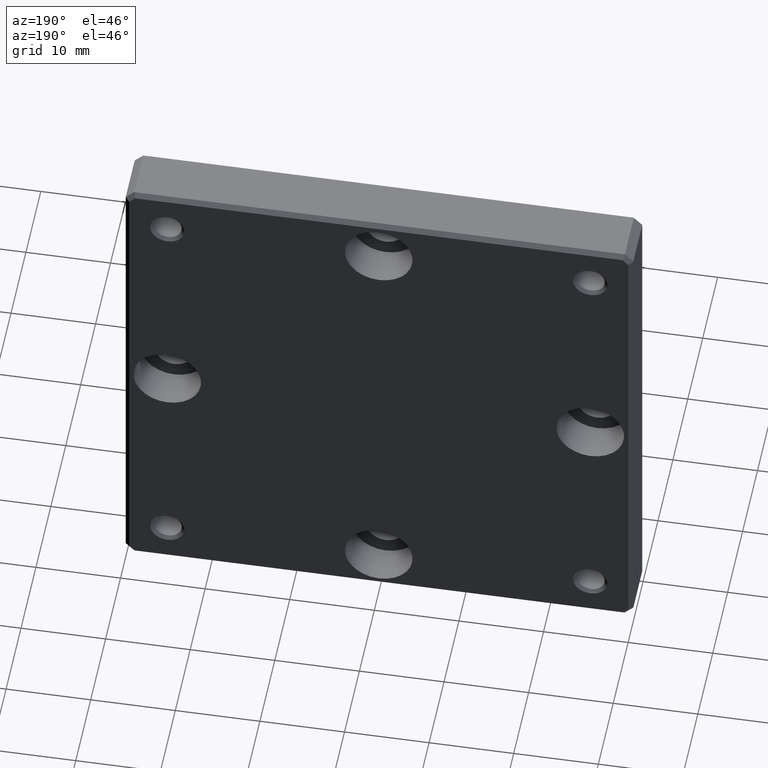
[diagram: clean part render]
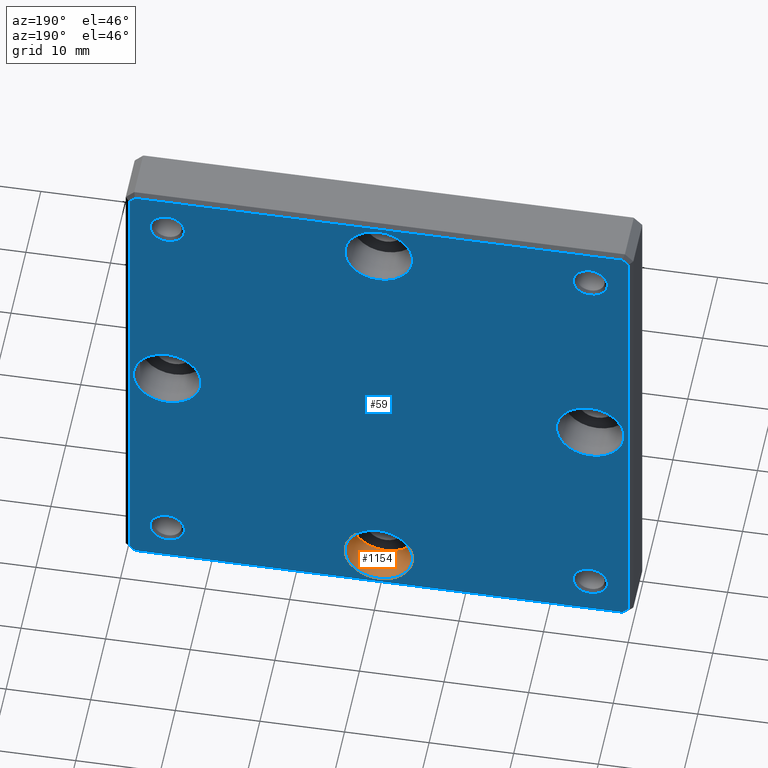
[diagram: same view with the hole feature highlighted: cylindrical wall and planar end face, labeled with their STEP entity ids]
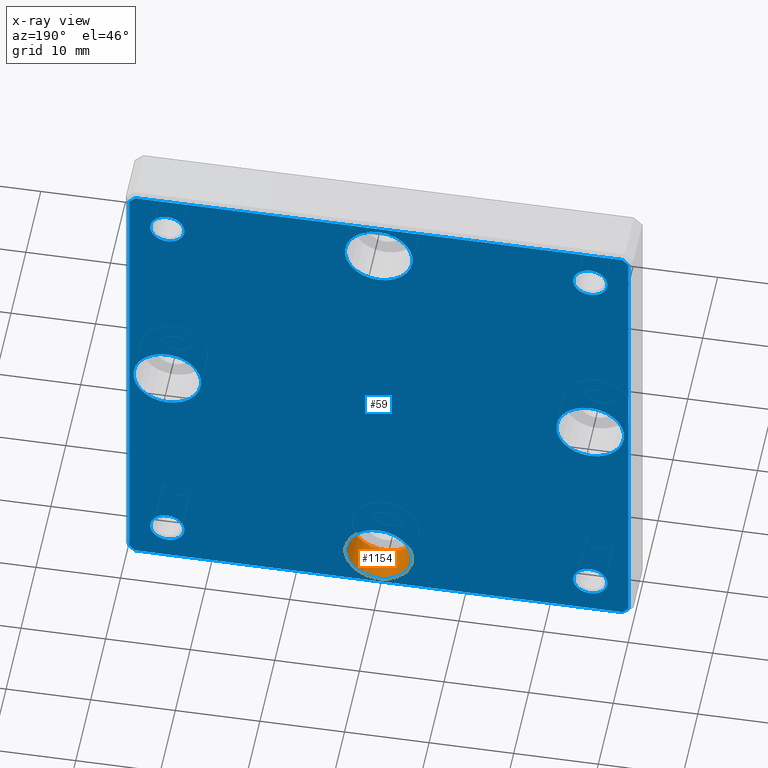
[diagram: x-ray of the same camera — body ghosted, the hole faces saturated]
A machine part, auxiliary view. The highlighted faces form one hole feature of diameter 8 mm: the cylindrical wall (entity #1154, orange) and its adjacent planar end face (entity #59, blue) — they share a circular edge in the B-rep.
The next image is the same camera in x-ray (body ghosted, the hole faces saturated) — the bore reads through the body.
Wall:
#3 = EDGE_LOOP ( 'NONE', ( #225 ) ) ;
#31 = AXIS2_PLACEMENT_3D ( 'NONE', #155, #1020, #43 ) ;
#43 = DIRECTION ( 'NONE',  ( 0.000000000000000000, 0.000000000000000000, 1.000000000000000000 ) ) ;
#110 = EDGE_CURVE ( 'NONE', #818, #818, #1236, .T. ) ;
#155 = CARTESIAN_POINT ( 'NONE',  ( -6.938893903907228378E-15, 2.400000000000000355, -24.99999999999999645 ) ) ;
#188 = CYLINDRICAL_SURFACE ( 'NONE', #197, 4.000000000000000000 ) ;
#197 = AXIS2_PLACEMENT_3D ( 'NONE', #378, #1062, #775 ) ;
#225 = ORIENTED_EDGE ( 'NONE', *, *, #725, .F. ) ;
#279 = FACE_OUTER_BOUND ( 'NONE', #409, .T. ) ;
#359 = DIRECTION ( 'NONE',  ( 0.000000000000000000, 0.000000000000000000, 1.000000000000000000 ) ) ;
#378 = CARTESIAN_POINT ( 'NONE',  ( -6.938893903907228378E-15, 7.000000000000000000, -24.99999999999999645 ) ) ;
#409 = EDGE_LOOP ( 'NONE', ( #1036 ) ) ;
#725 = EDGE_CURVE ( 'NONE', #831, #831, #1017, .T. ) ;
#775 = DIRECTION ( 'NONE',  ( 0.000000000000000000, 0.000000000000000000, 1.000000000000000000 ) ) ;
#818 = VERTEX_POINT ( 'NONE', #1029 ) ;
#831 = VERTEX_POINT ( 'NONE', #1220 ) ;
#851 = DIRECTION ( 'NONE',  ( -0.000000000000000000, 1.000000000000000000, -0.000000000000000000 ) ) ;
#988 = AXIS2_PLACEMENT_3D ( 'NONE', #1158, #851, #359 ) ;
#1017 = CIRCLE ( 'NONE', #31, 4.000000000000000000 ) ;
#1020 = DIRECTION ( 'NONE',  ( -0.000000000000000000, 1.000000000000000000, -0.000000000000000000 ) ) ;
#1029 = CARTESIAN_POINT ( 'NONE',  ( -6.938893903907228378E-15, 7.000000000000000000, -20.99999999999999645 ) ) ;
#1036 = ORIENTED_EDGE ( 'NONE', *, *, #110, .T. ) ;
#1062 = DIRECTION ( 'NONE',  ( -0.000000000000000000, 1.000000000000000000, -0.000000000000000000 ) ) ;
#1068 = FACE_OUTER_BOUND ( 'NONE', #3, .T. ) ;
#1154 = ADVANCED_FACE ( 'NONE', ( #1068, #279 ), #188, .F. ) ;
#1158 = CARTESIAN_POINT ( 'NONE',  ( -6.938893903907228378E-15, 7.000000000000000000, -24.99999999999999645 ) ) ;
#1220 = CARTESIAN_POINT ( 'NONE',  ( -6.938893903907228378E-15, 2.400000000000000355, -20.99999999999999645 ) ) ;
#1236 = CIRCLE ( 'NONE', #988, 4.000000000000000000 ) ;
End face:
#1 = CIRCLE ( 'NONE', #779, 2.024999999999999023 ) ;
#14 = DIRECTION ( 'NONE',  ( -0.000000000000000000, 1.000000000000000000, -0.000000000000000000 ) ) ;
#19 = EDGE_LOOP ( 'NONE', ( #230, #625, #1211, #970, #1086, #951, #888, #118 ) ) ;
#21 = EDGE_CURVE ( 'NONE', #269, #806, #223, .T. ) ;
#23 = AXIS2_PLACEMENT_3D ( 'NONE', #528, #40, #443 ) ;
#28 = LINE ( 'NONE', #705, #221 ) ;
#40 = DIRECTION ( 'NONE',  ( -0.000000000000000000, 1.000000000000000000, -0.000000000000000000 ) ) ;
#41 = EDGE_CURVE ( 'NONE', #61, #61, #151, .T. ) ;
#50 = EDGE_CURVE ( 'NONE', #944, #173, #1000, .T. ) ;
#55 = CARTESIAN_POINT ( 'NONE',  ( 29.50000000000000711, 7.000000000000000000, 28.79289321881344677 ) ) ;
#59 = ADVANCED_FACE ( 'NONE', ( #461, #1143, #858, #445, #1042, #1238, #171, #177, #955 ), #670, .T. ) ;
#61 = VERTEX_POINT ( 'NONE', #532 ) ;
#65 = CARTESIAN_POINT ( 'NONE',  ( 24.99999999999999645, 7.000000000000000000, 3.469446951953614189E-15 ) ) ;
#68 = EDGE_CURVE ( 'NONE', #957, #944, #73, .T. ) ;
#73 = LINE ( 'NONE', #267, #667 ) ;
#76 = VERTEX_POINT ( 'NONE', #952 ) ;
#79 = VECTOR ( 'NONE', #488, 1000.000000000000114 ) ;
#80 = DIRECTION ( 'NONE',  ( 0.000000000000000000, 0.000000000000000000, -1.000000000000000000 ) ) ;
#94 = DIRECTION ( 'NONE',  ( -0.000000000000000000, 1.000000000000000000, -0.000000000000000000 ) ) ;
#95 = EDGE_LOOP ( 'NONE', ( #883 ) ) ;
#99 = LINE ( 'NONE', #887, #79 ) ;
#102 = EDGE_CURVE ( 'NONE', #420, #420, #193, .T. ) ;
#110 = EDGE_CURVE ( 'NONE', #818, #818, #1236, .T. ) ;
#118 = ORIENTED_EDGE ( 'NONE', *, *, #1216, .T. ) ;
#119 = DIRECTION ( 'NONE',  ( 0.000000000000000000, 0.000000000000000000, 1.000000000000000000 ) ) ;
#120 = DIRECTION ( 'NONE',  ( 0.000000000000000000, 0.000000000000000000, 1.000000000000000000 ) ) ;
#129 = ORIENTED_EDGE ( 'NONE', *, *, #1107, .F. ) ;
#133 = DIRECTION ( 'NONE',  ( -0.7071067811865474617, 0.000000000000000000, 0.7071067811865474617 ) ) ;
#151 = CIRCLE ( 'NONE', #805, 4.000000000000000000 ) ;
#156 = EDGE_LOOP ( 'NONE', ( #822 ) ) ;
#171 = FACE_BOUND ( 'NONE', #793, .T. ) ;
#173 = VERTEX_POINT ( 'NONE', #904 ) ;
#177 = FACE_BOUND ( 'NONE', #830, .T. ) ;
#185 = ORIENTED_EDGE ( 'NONE', *, *, #534, .F. ) ;
#190 = CARTESIAN_POINT ( 'NONE',  ( -29.50000000000000711, 7.000000000000000000, -28.79289321881346808 ) ) ;
#193 = CIRCLE ( 'NONE', #1009, 4.000000000000000000 ) ;
#199 = CARTESIAN_POINT ( 'NONE',  ( 29.50000000000000711, 7.000000000000000000, -28.79289321881344321 ) ) ;
#203 = EDGE_CURVE ( 'NONE', #441, #441, #1192, .T. ) ;
#210 = AXIS2_PLACEMENT_3D ( 'NONE', #1116, #227, #541 ) ;
#220 = DIRECTION ( 'NONE',  ( -0.000000000000000000, 1.000000000000000000, -0.000000000000000000 ) ) ;
#221 = VECTOR ( 'NONE', #807, 1000.000000000000000 ) ;
#223 = LINE ( 'NONE', #515, #293 ) ;
#227 = DIRECTION ( 'NONE',  ( -0.000000000000000000, 1.000000000000000000, -0.000000000000000000 ) ) ;
#230 = ORIENTED_EDGE ( 'NONE', *, *, #257, .T. ) ;
#257 = EDGE_CURVE ( 'NONE', #1120, #930, #619, .T. ) ;
#267 = CARTESIAN_POINT ( 'NONE',  ( 29.50000000000000711, 7.000000000000000000, -28.99999999999999645 ) ) ;
#269 = VERTEX_POINT ( 'NONE', #341 ) ;
#287 = CARTESIAN_POINT ( 'NONE',  ( 28.79289321881344677, 7.000000000000000000, 29.50000000000000000 ) ) ;
#292 = EDGE_CURVE ( 'NONE', #623, #623, #410, .T. ) ;
#293 = VECTOR ( 'NONE', #133, 1000.000000000000114 ) ;
#307 = CARTESIAN_POINT ( 'NONE',  ( -25.00000000000000000, 7.000000000000000000, 25.00000000000000355 ) ) ;
#309 = VECTOR ( 'NONE', #918, 1000.000000000000000 ) ;
#312 = EDGE_LOOP ( 'NONE', ( #1182 ) ) ;
#328 = DIRECTION ( 'NONE',  ( 0.000000000000000000, 0.000000000000000000, 1.000000000000000000 ) ) ;
#335 = AXIS2_PLACEMENT_3D ( 'NONE', #307, #220, #120 ) ;
#341 = CARTESIAN_POINT ( 'NONE',  ( -28.79289321881346098, 7.000000000000000000, -29.50000000000001066 ) ) ;
#348 = CARTESIAN_POINT ( 'NONE',  ( 0.000000000000000000, 7.000000000000000000, 29.00000000000000355 ) ) ;
#359 = DIRECTION ( 'NONE',  ( 0.000000000000000000, 0.000000000000000000, 1.000000000000000000 ) ) ;
#372 = CARTESIAN_POINT ( 'NONE',  ( 29.14644660940682641, 7.000000000000000000, -29.14644660940662391 ) ) ;
#407 = LINE ( 'NONE', #804, #678 ) ;
#410 = CIRCLE ( 'NONE', #23, 2.024999999999999023 ) ;
#420 = VERTEX_POINT ( 'NONE', #722 ) ;
#425 = DIRECTION ( 'NONE',  ( -0.000000000000000000, 1.000000000000000000, -0.000000000000000000 ) ) ;
#441 = VERTEX_POINT ( 'NONE', #348 ) ;
#443 = DIRECTION ( 'NONE',  ( 0.000000000000000000, 0.000000000000000000, 1.000000000000000000 ) ) ;
#445 = FACE_BOUND ( 'NONE', #742, .T. ) ;
#454 = DIRECTION ( 'NONE',  ( 0.000000000000000000, 1.000000000000000000, 0.000000000000000000 ) ) ;
#461 = FACE_BOUND ( 'NONE', #597, .T. ) ;
#462 = CARTESIAN_POINT ( 'NONE',  ( -29.00000000000000355, 7.000000000000000000, -29.50000000000001066 ) ) ;
#470 = AXIS2_PLACEMENT_3D ( 'NONE', #892, #14, #119 ) ;
#477 = CARTESIAN_POINT ( 'NONE',  ( 24.99999999999999289, 7.000000000000000000, -24.99999999999999645 ) ) ;
#488 = DIRECTION ( 'NONE',  ( 0.7071067811865500152, 0.000000000000000000, -0.7071067811865451302 ) ) ;
#499 = CARTESIAN_POINT ( 'NONE',  ( -28.79289321881344677, 7.000000000000000000, 29.50000000000000000 ) ) ;
#515 = CARTESIAN_POINT ( 'NONE',  ( -29.14644660940673759, 7.000000000000000000, -29.14644660940673759 ) ) ;
#521 = EDGE_CURVE ( 'NONE', #806, #869, #28, .T. ) ;
#523 = CARTESIAN_POINT ( 'NONE',  ( -25.00000000000000355, 7.000000000000000000, 3.469446951953614189E-15 ) ) ;
#528 = CARTESIAN_POINT ( 'NONE',  ( -25.00000000000000711, 7.000000000000000000, -24.99999999999999645 ) ) ;
#532 = CARTESIAN_POINT ( 'NONE',  ( -25.00000000000000355, 7.000000000000000000, 4.000000000000003553 ) ) ;
#534 = EDGE_CURVE ( 'NONE', #824, #824, #1019, .T. ) ;
#541 = DIRECTION ( 'NONE',  ( 0.000000000000000000, 0.000000000000000000, 1.000000000000000000 ) ) ;
#553 = CARTESIAN_POINT ( 'NONE',  ( 0.000000000000000000, 7.000000000000000000, 0.000000000000000000 ) ) ;
#554 = LINE ( 'NONE', #462, #710 ) ;
#568 = DIRECTION ( 'NONE',  ( 0.000000000000000000, -0.000000000000000000, 1.000000000000000000 ) ) ;
#593 = CARTESIAN_POINT ( 'NONE',  ( -29.50000000000000000, 7.000000000000000000, 28.79289321881343966 ) ) ;
#597 = EDGE_LOOP ( 'NONE', ( #1109 ) ) ;
#619 = LINE ( 'NONE', #1008, #309 ) ;
#623 = VERTEX_POINT ( 'NONE', #1022 ) ;
#625 = ORIENTED_EDGE ( 'NONE', *, *, #846, .T. ) ;
#643 = VECTOR ( 'NONE', #1056, 1000.000000000000114 ) ;
#667 = VECTOR ( 'NONE', #80, 1000.000000000000000 ) ;
#670 = PLANE ( 'NONE',  #890 ) ;
#678 = VECTOR ( 'NONE', #1157, 1000.000000000000114 ) ;
#695 = EDGE_CURVE ( 'NONE', #173, #269, #554, .T. ) ;
#705 = CARTESIAN_POINT ( 'NONE',  ( -29.50000000000000000, 7.000000000000000000, 28.99999999999998579 ) ) ;
#710 = VECTOR ( 'NONE', #1224, 1000.000000000000000 ) ;
#716 = VERTEX_POINT ( 'NONE', #1103 ) ;
#722 = CARTESIAN_POINT ( 'NONE',  ( 24.99999999999999645, 7.000000000000000000, 4.000000000000003553 ) ) ;
#742 = EDGE_LOOP ( 'NONE', ( #1052 ) ) ;
#755 = CIRCLE ( 'NONE', #335, 2.024999999999999023 ) ;
#779 = AXIS2_PLACEMENT_3D ( 'NONE', #477, #94, #868 ) ;
#793 = EDGE_LOOP ( 'NONE', ( #185 ) ) ;
#804 = CARTESIAN_POINT ( 'NONE',  ( -29.14644660940682286, 7.000000000000000000, 29.14644660940662035 ) ) ;
#805 = AXIS2_PLACEMENT_3D ( 'NONE', #523, #425, #328 ) ;
#806 = VERTEX_POINT ( 'NONE', #190 ) ;
#807 = DIRECTION ( 'NONE',  ( 1.156482317317871478E-16, 0.000000000000000000, 1.000000000000000000 ) ) ;
#818 = VERTEX_POINT ( 'NONE', #1029 ) ;
#822 = ORIENTED_EDGE ( 'NONE', *, *, #919, .F. ) ;
#824 = VERTEX_POINT ( 'NONE', #1213 ) ;
#830 = EDGE_LOOP ( 'NONE', ( #129 ) ) ;
#846 = EDGE_CURVE ( 'NONE', #930, #957, #99, .T. ) ;
#851 = DIRECTION ( 'NONE',  ( -0.000000000000000000, 1.000000000000000000, -0.000000000000000000 ) ) ;
#858 = FACE_BOUND ( 'NONE', #95, .T. ) ;
#868 = DIRECTION ( 'NONE',  ( 0.000000000000000000, 0.000000000000000000, 1.000000000000000000 ) ) ;
#869 = VERTEX_POINT ( 'NONE', #593 ) ;
#883 = ORIENTED_EDGE ( 'NONE', *, *, #203, .F. ) ;
#887 = CARTESIAN_POINT ( 'NONE',  ( 29.14644660940662035, 7.000000000000000000, 29.14644660940682286 ) ) ;
#888 = ORIENTED_EDGE ( 'NONE', *, *, #521, .T. ) ;
#890 = AXIS2_PLACEMENT_3D ( 'NONE', #553, #454, #568 ) ;
#892 = CARTESIAN_POINT ( 'NONE',  ( 25.00000000000000000, 7.000000000000000000, 25.00000000000000355 ) ) ;
#904 = CARTESIAN_POINT ( 'NONE',  ( 28.79289321881344321, 7.000000000000000000, -29.50000000000001066 ) ) ;
#918 = DIRECTION ( 'NONE',  ( 1.000000000000000000, 0.000000000000000000, 0.000000000000000000 ) ) ;
#919 = EDGE_CURVE ( 'NONE', #716, #716, #1, .T. ) ;
#930 = VERTEX_POINT ( 'NONE', #287 ) ;
#944 = VERTEX_POINT ( 'NONE', #199 ) ;
#951 = ORIENTED_EDGE ( 'NONE', *, *, #21, .T. ) ;
#952 = CARTESIAN_POINT ( 'NONE',  ( -25.00000000000000000, 7.000000000000000000, 27.02500000000000213 ) ) ;
#955 = FACE_OUTER_BOUND ( 'NONE', #19, .T. ) ;
#957 = VERTEX_POINT ( 'NONE', #55 ) ;
#970 = ORIENTED_EDGE ( 'NONE', *, *, #50, .T. ) ;
#988 = AXIS2_PLACEMENT_3D ( 'NONE', #1158, #851, #359 ) ;
#1000 = LINE ( 'NONE', #372, #643 ) ;
#1008 = CARTESIAN_POINT ( 'NONE',  ( 28.99999999999997868, 7.000000000000000000, 29.50000000000000000 ) ) ;
#1009 = AXIS2_PLACEMENT_3D ( 'NONE', #65, #1034, #1063 ) ;
#1019 = CIRCLE ( 'NONE', #470, 2.024999999999999023 ) ;
#1022 = CARTESIAN_POINT ( 'NONE',  ( -25.00000000000000711, 7.000000000000000000, -22.97499999999999787 ) ) ;
#1029 = CARTESIAN_POINT ( 'NONE',  ( -6.938893903907228378E-15, 7.000000000000000000, -20.99999999999999645 ) ) ;
#1034 = DIRECTION ( 'NONE',  ( -0.000000000000000000, 1.000000000000000000, -0.000000000000000000 ) ) ;
#1042 = FACE_BOUND ( 'NONE', #312, .T. ) ;
#1052 = ORIENTED_EDGE ( 'NONE', *, *, #102, .F. ) ;
#1056 = DIRECTION ( 'NONE',  ( -0.7071067811865451302, 0.000000000000000000, -0.7071067811865500152 ) ) ;
#1063 = DIRECTION ( 'NONE',  ( 0.000000000000000000, 0.000000000000000000, 1.000000000000000000 ) ) ;
#1086 = ORIENTED_EDGE ( 'NONE', *, *, #695, .T. ) ;
#1103 = CARTESIAN_POINT ( 'NONE',  ( 24.99999999999999289, 7.000000000000000000, -22.97499999999999787 ) ) ;
#1107 = EDGE_CURVE ( 'NONE', #76, #76, #755, .T. ) ;
#1109 = ORIENTED_EDGE ( 'NONE', *, *, #110, .F. ) ;
#1116 = CARTESIAN_POINT ( 'NONE',  ( 0.000000000000000000, 7.000000000000000000, 25.00000000000000355 ) ) ;
#1120 = VERTEX_POINT ( 'NONE', #499 ) ;
#1143 = FACE_BOUND ( 'NONE', #1206, .T. ) ;
#1157 = DIRECTION ( 'NONE',  ( 0.7071067811865451302, 0.000000000000000000, 0.7071067811865500152 ) ) ;
#1158 = CARTESIAN_POINT ( 'NONE',  ( -6.938893903907228378E-15, 7.000000000000000000, -24.99999999999999645 ) ) ;
#1182 = ORIENTED_EDGE ( 'NONE', *, *, #292, .F. ) ;
#1189 = ORIENTED_EDGE ( 'NONE', *, *, #41, .F. ) ;
#1192 = CIRCLE ( 'NONE', #210, 4.000000000000000000 ) ;
#1206 = EDGE_LOOP ( 'NONE', ( #1189 ) ) ;
#1211 = ORIENTED_EDGE ( 'NONE', *, *, #68, .T. ) ;
#1213 = CARTESIAN_POINT ( 'NONE',  ( 25.00000000000000000, 7.000000000000000000, 27.02500000000000213 ) ) ;
#1216 = EDGE_CURVE ( 'NONE', #869, #1120, #407, .T. ) ;
#1224 = DIRECTION ( 'NONE',  ( -1.000000000000000000, 0.000000000000000000, 0.000000000000000000 ) ) ;
#1236 = CIRCLE ( 'NONE', #988, 4.000000000000000000 ) ;
#1238 = FACE_BOUND ( 'NONE', #156, .T. ) ;